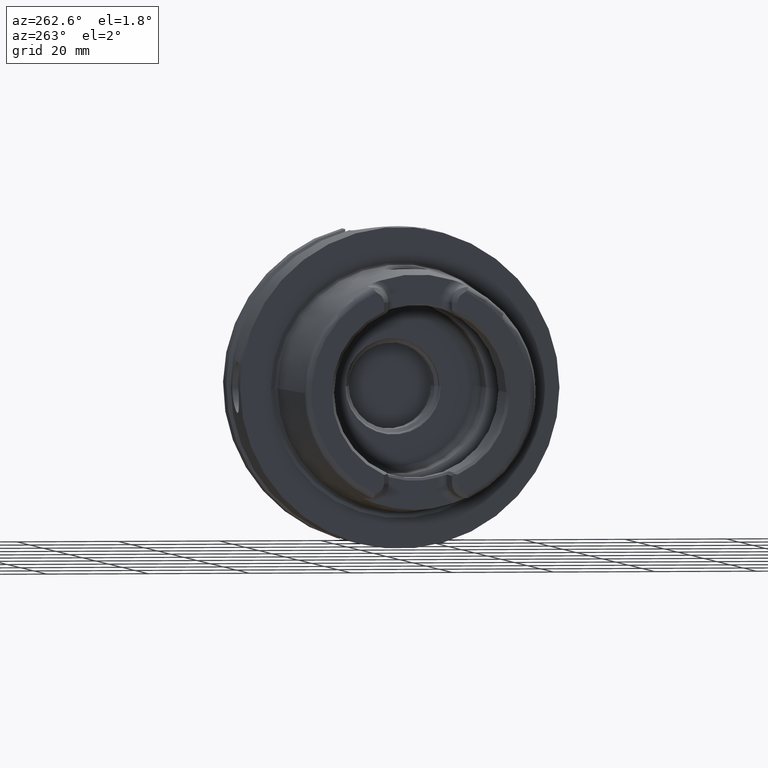
[diagram: clean part render]
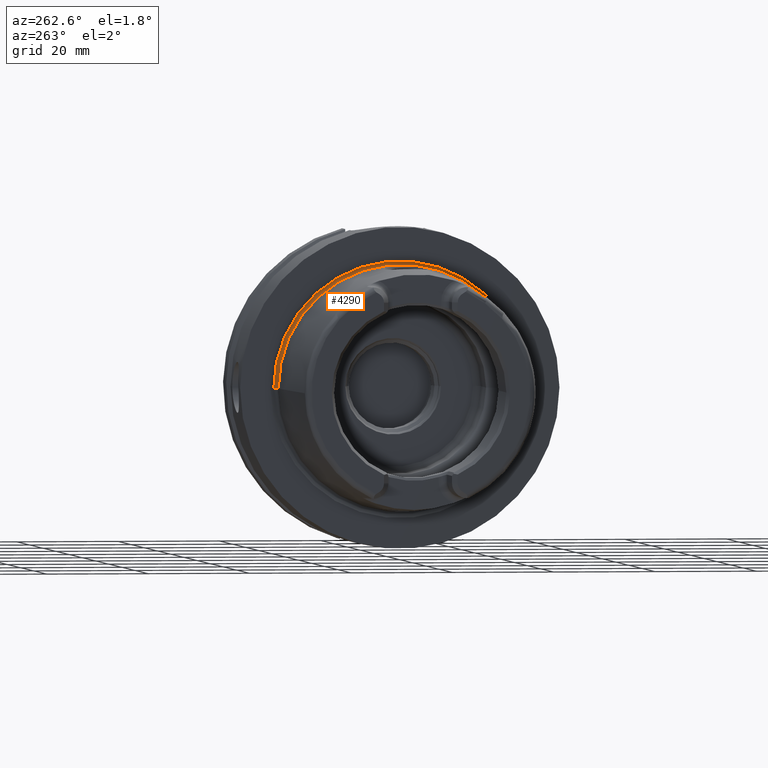
[diagram: same view with one face highlighted and labeled with its STEP entity id]
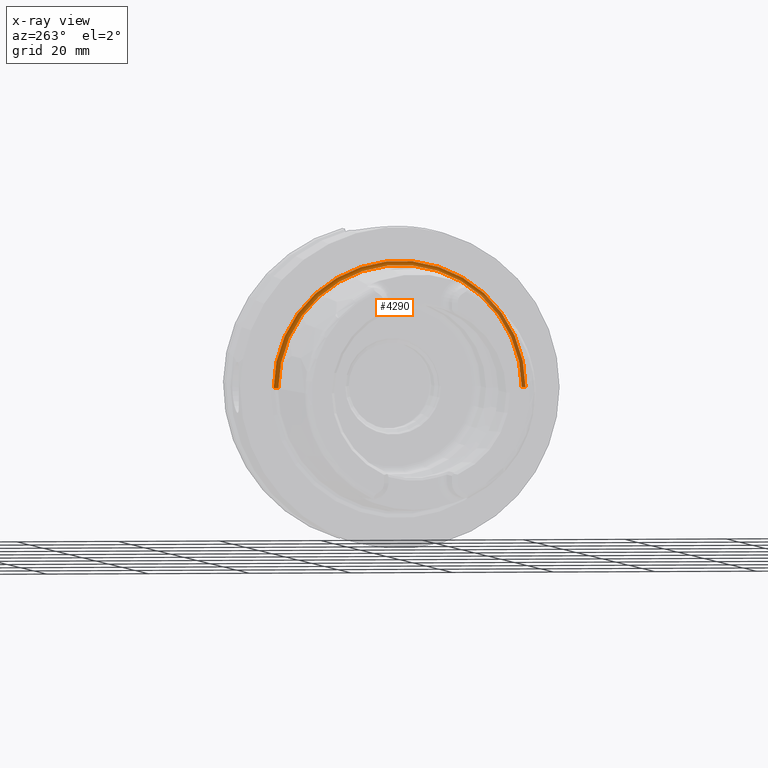
[diagram: x-ray of the same camera — body ghosted, the highlighted face saturated]
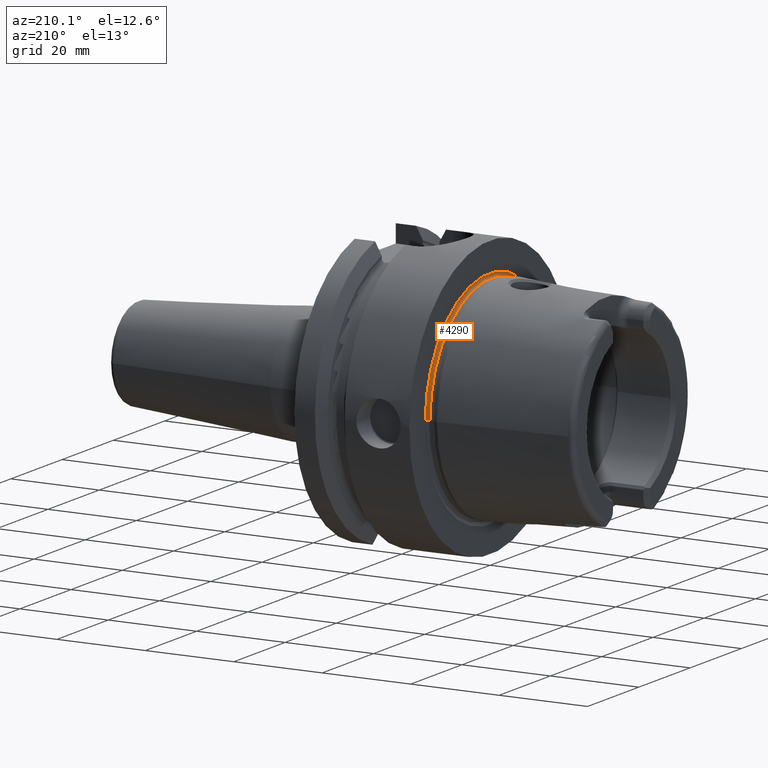
[diagram: same view with one face highlighted and labeled with its STEP entity id]
A machine part, auxiliary view. The second image highlights one B-rep face of the part: STEP entity #4290.
The next image is the same camera in x-ray: the body ghosted, the highlighted face saturated — about 25% of this face is hidden behind the body in this view.
A second angle (auxiliary view) of the same face is appended — the face is thin or edge-on in the first view.
In plain terms, the highlighted toroidal blend (fillet) surface has major radius 24.6204 mm and minor (blend) radius 0.6 mm.
Its self-contained STEP definition (entity closure, byte-faithful):
#1035=CARTESIAN_POINT('',(-3.021696305237E-1,0.E0,0.E0));
#1036=DIRECTION('',(-1.E0,0.E0,0.E0));
#1037=DIRECTION('',(0.E0,-1.E0,0.E0));
#1038=AXIS2_PLACEMENT_3D('',#1035,#1036,#1037);
#1040=CARTESIAN_POINT('',(2.560809102655E-1,0.E0,0.E0));
#1041=DIRECTION('',(-1.E0,0.E0,0.E0));
#1042=DIRECTION('',(0.E0,-1.E0,0.E0));
#1043=AXIS2_PLACEMENT_3D('',#1040,#1041,#1042);
#1045=CARTESIAN_POINT('',(-3.021696305237E-1,2.462042414966E1,0.E0));
#1046=DIRECTION('',(0.E0,0.E0,-1.E0));
#1047=DIRECTION('',(9.304175679820E-1,3.665012267243E-1,0.E0));
#1048=AXIS2_PLACEMENT_3D('',#1045,#1046,#1047);
#1050=CARTESIAN_POINT('',(-3.021696305237E-1,-2.462042414966E1,0.E0));
#1051=DIRECTION('',(0.E0,0.E0,1.E0));
#1052=DIRECTION('',(9.304175679820E-1,-3.665012267243E-1,0.E0));
#1053=AXIS2_PLACEMENT_3D('',#1050,#1051,#1052);
#2616=CARTESIAN_POINT('',(2.560809102655E-1,-2.484032488569E1,0.E0));
#2617=CARTESIAN_POINT('',(-3.021696305237E-1,-2.402042414966E1,0.E0));
#2618=VERTEX_POINT('',#2616);
#2619=VERTEX_POINT('',#2617);
#2624=CARTESIAN_POINT('',(2.560809102655E-1,2.484032488569E1,0.E0));
#2625=CARTESIAN_POINT('',(-3.021696305237E-1,2.402042414966E1,0.E0));
#2626=VERTEX_POINT('',#2624);
#2627=VERTEX_POINT('',#2625);
#4276=CARTESIAN_POINT('',(-3.021696305237E-1,0.E0,0.E0));
#4277=DIRECTION('',(-1.E0,0.E0,0.E0));
#4278=DIRECTION('',(0.E0,1.E0,0.E0));
#4279=AXIS2_PLACEMENT_3D('',#4276,#4277,#4278);
#4280=TOROIDAL_SURFACE('',#4279,2.462042414966E1,6.E-1);
#4282=ORIENTED_EDGE('',*,*,#4281,.T.);
#4283=ORIENTED_EDGE('',*,*,#4271,.T.);
#4285=ORIENTED_EDGE('',*,*,#4284,.F.);
#4287=ORIENTED_EDGE('',*,*,#4286,.F.);
#4288=EDGE_LOOP('',(#4282,#4283,#4285,#4287));
#4289=FACE_OUTER_BOUND('',#4288,.F.);
#4290=ADVANCED_FACE('',(#4289),#4280,.F.);
#1039=CIRCLE('',#1038,2.402042414966E1);
#1044=CIRCLE('',#1043,2.484032488569E1);
#1049=CIRCLE('',#1048,6.E-1);
#1054=CIRCLE('',#1053,6.E-1);
#4271=EDGE_CURVE('',#2619,#2627,#1039,.T.);
#4281=EDGE_CURVE('',#2618,#2619,#1054,.T.);
#4284=EDGE_CURVE('',#2626,#2627,#1049,.T.);
#4286=EDGE_CURVE('',#2618,#2626,#1044,.T.);